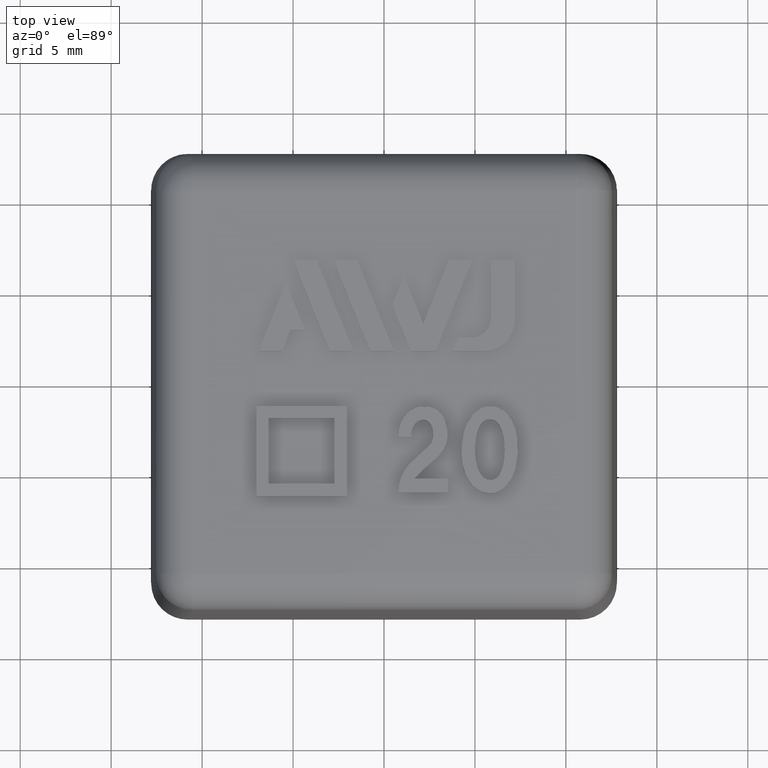
[diagram: clean part render]
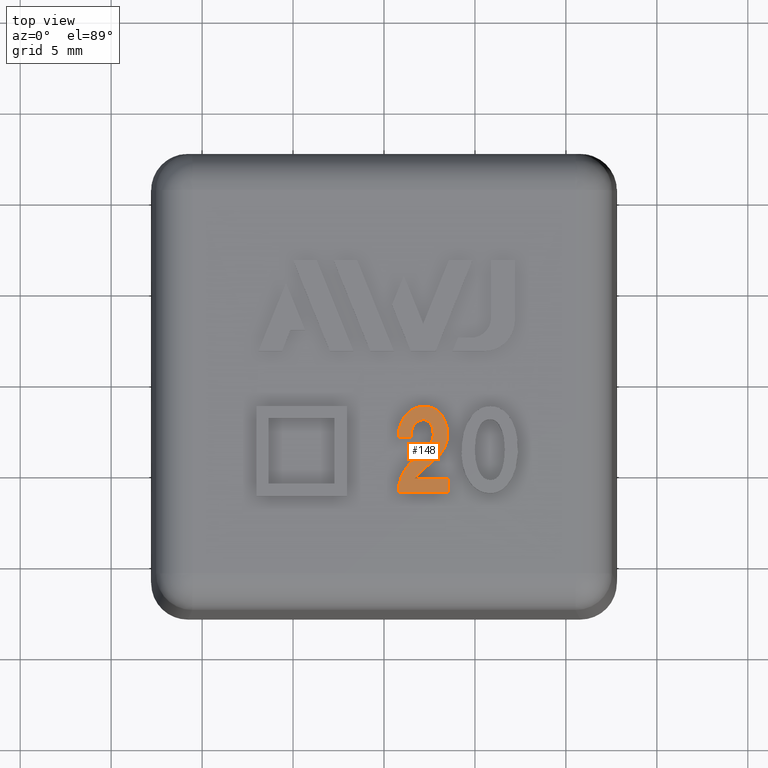
[diagram: same view with one face highlighted and labeled with its STEP entity id]
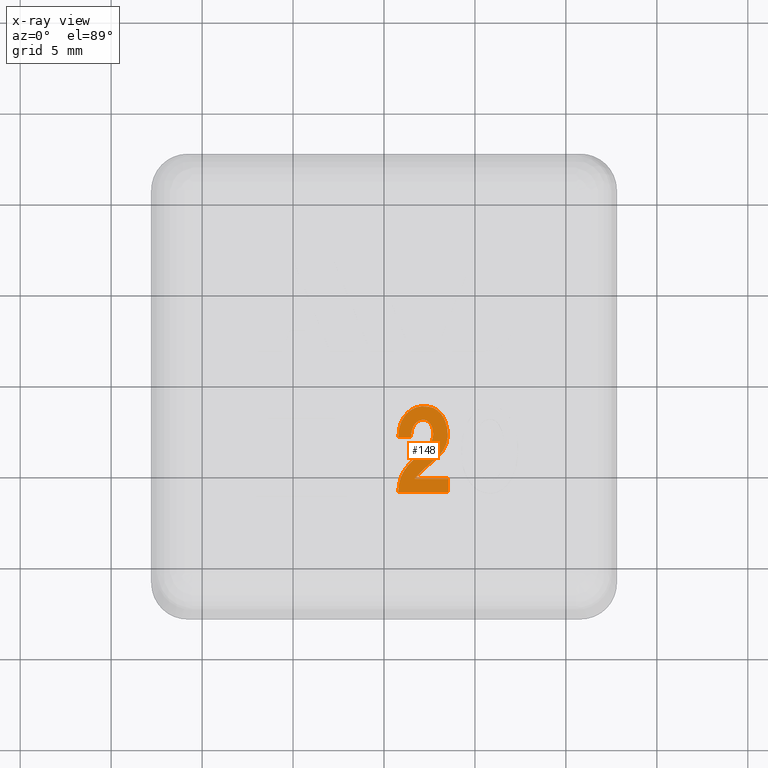
[diagram: x-ray of the same camera — body ghosted, the highlighted face saturated]
A machine part, top view. The second image highlights one B-rep face of the part: STEP entity #148.
The next image is the same camera in x-ray: the body ghosted, the highlighted face saturated — about 0% of this face is hidden behind the body in this view.
In plain terms, the highlighted planar face has unit normal (0, 0, 1).
Its self-contained STEP definition (entity closure, byte-faithful):
#148 = ADVANCED_FACE( '', ( #312 ), #313, .T. );
#312 = FACE_OUTER_BOUND( '', #483, .T. );
#313 = PLANE( '', #484 );
#483 = EDGE_LOOP( '', ( #1100, #1101, #1102, #1103, #1104, #1105 ) );
#484 = AXIS2_PLACEMENT_3D( '', #1106, #1107, #1108 );
#1100 = ORIENTED_EDGE( '', *, *, #1182, .F. );
#1101 = ORIENTED_EDGE( '', *, *, #1180, .F. );
#1102 = ORIENTED_EDGE( '', *, *, #1178, .F. );
#1103 = ORIENTED_EDGE( '', *, *, #1303, .F. );
#1104 = ORIENTED_EDGE( '', *, *, #1304, .F. );
#1105 = ORIENTED_EDGE( '', *, *, #1305, .F. );
#1106 = CARTESIAN_POINT( '', ( 3.43242575217848, -2.42842030146022, 17.5000000000000 ) );
#1107 = DIRECTION( '', ( 0.000000000000000, 0.000000000000000, 1.00000000000000 ) );
#1108 = DIRECTION( '', ( 0.000000000000000, -1.00000000000000, 0.000000000000000 ) );
#1178 = EDGE_CURVE( '', #1402, #1404, #1405, .T. );
#1180 = EDGE_CURVE( '', #1404, #1407, #1408, .T. );
#1182 = EDGE_CURVE( '', #1407, #1410, #1411, .T. );
#1303 = EDGE_CURVE( '', #1595, #1402, #1596, .T. );
#1304 = EDGE_CURVE( '', #1597, #1595, #1598, .T. );
#1305 = EDGE_CURVE( '', #1410, #1597, #1599, .T. );
#1402 = VERTEX_POINT( '', #1786 );
#1404 = VERTEX_POINT( '', #1789 );
#1405 = B_SPLINE_CURVE_WITH_KNOTS( '', 2, ( #1790, #1791, #1792, #1793, #1794, #1795, #1796, #1797, #1798, #1799, #1800, #1801, #1802 ), .UNSPECIFIED., .F., .F., ( 3, 2, 2, 2, 2, 2, 3 ), ( 9.00000000000000, 10.0000000000000, 11.0000000000000, 12.0000000000000, 13.0000000000000, 14.0000000000000, 15.0000000000000 ), .UNSPECIFIED. );
#1407 = VERTEX_POINT( '', #1805 );
#1408 = B_SPLINE_CURVE_WITH_KNOTS( '', 2, ( #1806, #1807, #1808 ), .UNSPECIFIED., .F., .F., ( 3, 3 ), ( 15.0000000000000, 16.0000000000000 ), .UNSPECIFIED. );
#1410 = VERTEX_POINT( '', #1811 );
#1411 = B_SPLINE_CURVE_WITH_KNOTS( '', 2, ( #1812, #1813, #1814, #1815, #1816, #1817, #1818, #1819, #1820, #1821, #1822, #1823, #1824 ), .UNSPECIFIED., .F., .F., ( 3, 2, 2, 2, 2, 2, 3 ), ( 0.000000000000000, 1.00000000000000, 2.00000000000000, 3.00000000000000, 4.00000000000000, 5.00000000000000, 6.00000000000000 ), .UNSPECIFIED. );
#1595 = VERTEX_POINT( '', #2167 );
#1596 = B_SPLINE_CURVE_WITH_KNOTS( '', 2, ( #2168, #2169, #2170 ), .UNSPECIFIED., .F., .F., ( 3, 3 ), ( 8.00000000000000, 9.00000000000000 ), .UNSPECIFIED. );
#1597 = VERTEX_POINT( '', #2171 );
#1598 = B_SPLINE_CURVE_WITH_KNOTS( '', 2, ( #2172, #2173, #2174 ), .UNSPECIFIED., .F., .F., ( 3, 3 ), ( 7.00000000000000, 8.00000000000000 ), .UNSPECIFIED. );
#1599 = B_SPLINE_CURVE_WITH_KNOTS( '', 2, ( #2175, #2176, #2177 ), .UNSPECIFIED., .F., .F., ( 3, 3 ), ( 6.00000000000000, 7.00000000000000 ), .UNSPECIFIED. );
#1786 = CARTESIAN_POINT( '', ( 0.793824715909048, -6.11082727272729, 17.5000000000000 ) );
#1789 = CARTESIAN_POINT( '', ( 1.47564289772723, -3.06537272727274, 17.5000000000000 ) );
#1790 = CARTESIAN_POINT( '', ( 0.793824715909048, -6.11082727272729, 17.5000000000000 ) );
#1791 = CARTESIAN_POINT( '', ( 0.771097443181777, -5.06537272727274, 17.5000000000000 ) );
#1792 = CARTESIAN_POINT( '', ( 1.63603140961712, -4.31687217939601, 17.5000000000000 ) );
#1793 = CARTESIAN_POINT( '', ( 1.95291562499996, -4.04264545454547, 17.5000000000000 ) );
#1794 = CARTESIAN_POINT( '', ( 2.26932089363578, -3.76787245809857, 17.5000000000000 ) );
#1795 = CARTESIAN_POINT( '', ( 2.81655198863632, -3.29264545454547, 17.5000000000000 ) );
#1796 = CARTESIAN_POINT( '', ( 2.68418034473618, -2.66020315591146, 17.5000000000000 ) );
#1797 = CARTESIAN_POINT( '', ( 2.61200653409087, -2.31537272727274, 17.5000000000000 ) );
#1798 = CARTESIAN_POINT( '', ( 2.36480373688807, -2.17411398601400, 17.5000000000000 ) );
#1799 = CARTESIAN_POINT( '', ( 2.13473380681814, -2.04264545454547, 17.5000000000000 ) );
#1800 = CARTESIAN_POINT( '', ( 1.86311405601057, -2.20360530687588, 17.5000000000000 ) );
#1801 = CARTESIAN_POINT( '', ( 1.52109744318178, -2.40628181818184, 17.5000000000000 ) );
#1802 = CARTESIAN_POINT( '', ( 1.47564289772723, -3.06537272727274, 17.5000000000000 ) );
#1805 = CARTESIAN_POINT( '', ( 0.793824715909048, -3.06537272727274, 17.5000000000000 ) );
#1806 = CARTESIAN_POINT( '', ( 1.47564289772723, -3.06537272727274, 17.5000000000000 ) );
#1807 = CARTESIAN_POINT( '', ( 1.13473380681814, -3.06537272727274, 17.5000000000000 ) );
#1808 = CARTESIAN_POINT( '', ( 0.793824715909048, -3.06537272727274, 17.5000000000000 ) );
#1811 = CARTESIAN_POINT( '', ( 1.68018835227269, -5.36082727272729, 17.5000000000000 ) );
#1812 = CARTESIAN_POINT( '', ( 0.793824715909048, -3.06537272727274, 17.5000000000000 ) );
#1813 = CARTESIAN_POINT( '', ( 0.793824715909048, -2.29264545454547, 17.5000000000000 ) );
#1814 = CARTESIAN_POINT( '', ( 1.21421647884225, -1.82554349573081, 17.5000000000000 ) );
#1815 = CARTESIAN_POINT( '', ( 1.61200653409087, -1.38355454545456, 17.5000000000000 ) );
#1816 = CARTESIAN_POINT( '', ( 2.18018835227269, -1.38355454545456, 17.5000000000000 ) );
#1817 = CARTESIAN_POINT( '', ( 3.15746107954541, -1.38355454545456, 17.5000000000000 ) );
#1818 = CARTESIAN_POINT( '', ( 3.43242575217848, -2.42842030146022, 17.5000000000000 ) );
#1819 = CARTESIAN_POINT( '', ( 3.72564289772723, -3.54264545454547, 17.5000000000000 ) );
#1820 = CARTESIAN_POINT( '', ( 2.77791388433572, -4.32364436372922, 17.5000000000000 ) );
#1821 = CARTESIAN_POINT( '', ( 2.49837017045450, -4.55400909090911, 17.5000000000000 ) );
#1822 = CARTESIAN_POINT( '', ( 2.22677057329710, -4.79392206839815, 17.5000000000000 ) );
#1823 = CARTESIAN_POINT( '', ( 1.81655198863632, -5.15628181818184, 17.5000000000000 ) );
#1824 = CARTESIAN_POINT( '', ( 1.68018835227269, -5.36082727272729, 17.5000000000000 ) );
#2167 = CARTESIAN_POINT( '', ( 3.52109744318178, -6.11082727272729, 17.5000000000000 ) );
#2168 = CARTESIAN_POINT( '', ( 3.52109744318178, -6.11082727272729, 17.5000000000000 ) );
#2169 = CARTESIAN_POINT( '', ( 2.15746107954541, -6.11082727272729, 17.5000000000000 ) );
#2170 = CARTESIAN_POINT( '', ( 0.793824715909048, -6.11082727272729, 17.5000000000000 ) );
#2171 = CARTESIAN_POINT( '', ( 3.52109744318178, -5.36082727272729, 17.5000000000000 ) );
#2172 = CARTESIAN_POINT( '', ( 3.52109744318178, -5.36082727272729, 17.5000000000000 ) );
#2173 = CARTESIAN_POINT( '', ( 3.52109744318178, -5.73582727272729, 17.5000000000000 ) );
#2174 = CARTESIAN_POINT( '', ( 3.52109744318178, -6.11082727272729, 17.5000000000000 ) );
#2175 = CARTESIAN_POINT( '', ( 1.68018835227269, -5.36082727272729, 17.5000000000000 ) );
#2176 = CARTESIAN_POINT( '', ( 2.60064289772723, -5.36082727272729, 17.5000000000000 ) );
#2177 = CARTESIAN_POINT( '', ( 3.52109744318178, -5.36082727272729, 17.5000000000000 ) );